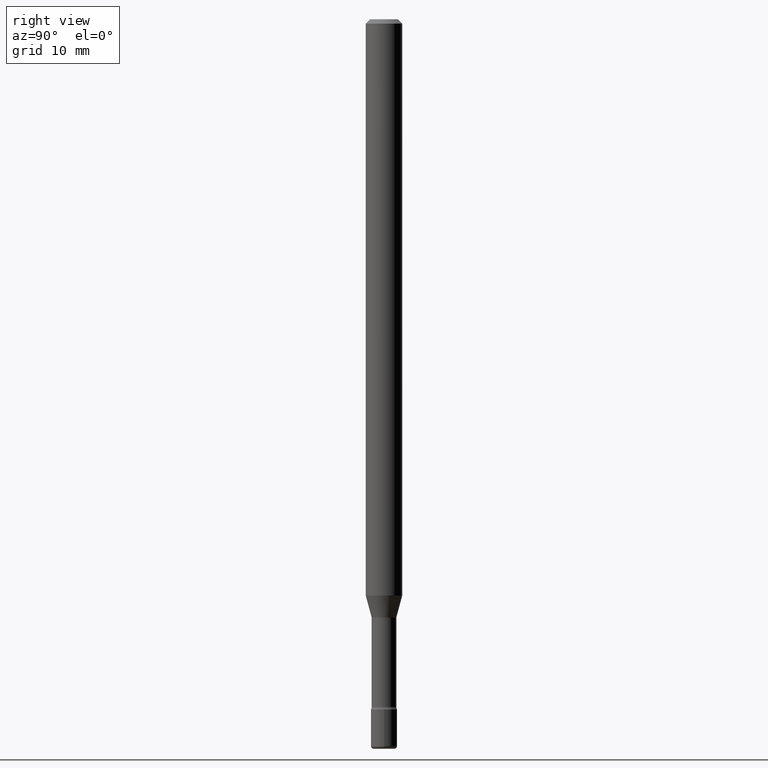
[diagram: clean part render]
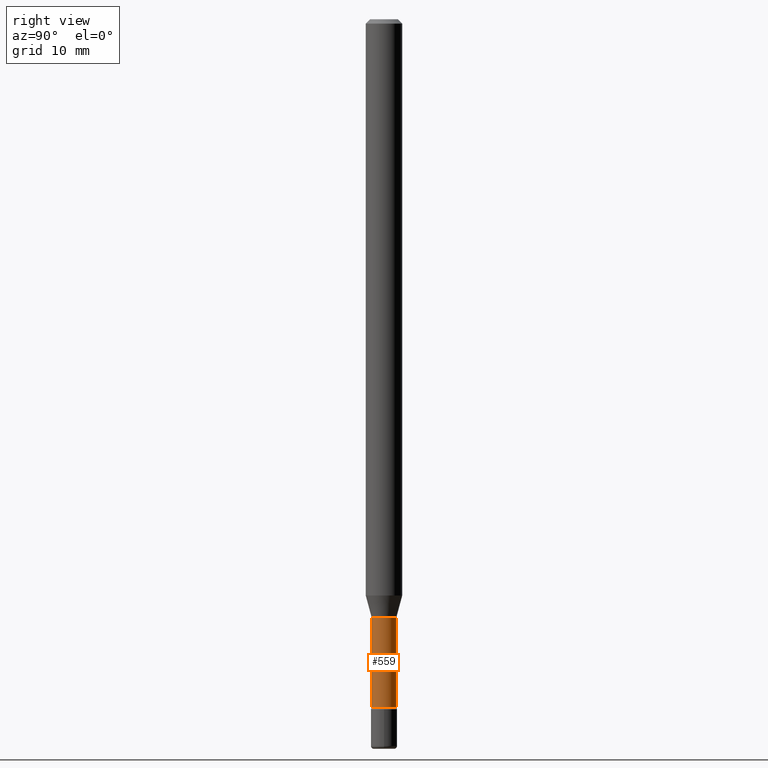
[diagram: same view with one face highlighted and labeled with its STEP entity id]
A machine part, right view. The second image highlights one B-rep face of the part: STEP entity #559.
In plain terms, the highlighted cylindrical surface (edge-blend (fillet) strip) has radius 1.0744 mm, axis along (-0, 0, 1).
Its self-contained STEP definition (entity closure, byte-faithful):
#9 = VERTEX_POINT ( 'NONE', #539 ) ;
#19 = DIRECTION ( 'NONE',  ( -6.982962677686266711E-15, -1.000000000000000000, 6.458269488567998169E-15 ) ) ;
#32 = DIRECTION ( 'NONE',  ( -2.445411864812793917E-29, 3.491562882129241838E-15, 1.000000000000000000 ) ) ;
#40 = CARTESIAN_POINT ( 'NONE',  ( -2.953793212661290535E-16, -0.04229999999999999732, 6.257665088053130012E-16 ) ) ;
#56 = EDGE_LOOP ( 'NONE', ( #516, #128, #101, #84 ) ) ;
#80 = EDGE_CURVE ( 'NONE', #119, #566, #97, .T. ) ;
#84 = ORIENTED_EDGE ( 'NONE', *, *, #440, .F. ) ;
#97 = CIRCLE ( 'NONE', #334, 0.04229999999999999732 ) ;
#101 = ORIENTED_EDGE ( 'NONE', *, *, #458, .F. ) ;
#112 = DIRECTION ( 'NONE',  ( -2.445411864812793917E-29, 3.491562882129241838E-15, 1.000000000000000000 ) ) ;
#119 = VERTEX_POINT ( 'NONE', #160 ) ;
#125 = CIRCLE ( 'NONE', #509, 0.04229999999999999732 ) ;
#128 = ORIENTED_EDGE ( 'NONE', *, *, #439, .T. ) ;
#160 = CARTESIAN_POINT ( 'NONE',  ( -2.953793212660714173E-16, -0.04230000000000822685, -2.356414547187247077 ) ) ;
#180 = CARTESIAN_POINT ( 'NONE',  ( 3.101519041593414751E-16, 0.04229999999999176780, -2.356414547187247965 ) ) ;
#213 = DIRECTION ( 'NONE',  ( -2.445411864812793917E-29, 3.491562882129241838E-15, 1.000000000000000000 ) ) ;
#248 = CARTESIAN_POINT ( 'NONE',  ( 3.005595772265223103E-16, 0.04229999999999999732, 3.303802889771791745E-16 ) ) ;
#254 = CYLINDRICAL_SURFACE ( 'NONE', #531, 0.04229999999999999732 ) ;
#334 = AXIS2_PLACEMENT_3D ( 'NONE', #376, #408, #19 ) ;
#344 = LINE ( 'NONE', #40, #471 ) ;
#346 = DIRECTION ( 'NONE',  ( -2.445411864812793917E-29, 3.491562882129241838E-15, 1.000000000000000000 ) ) ;
#376 = CARTESIAN_POINT ( 'NONE',  ( 5.762404092109162712E-29, -8.227569567868378496E-15, -2.356414547187247521 ) ) ;
#393 = CARTESIAN_POINT ( 'NONE',  ( -1.169113584055446105E-44, 1.669184350826100908E-30, 4.780733988912460139E-16 ) ) ;
#395 = VERTEX_POINT ( 'NONE', #550 ) ;
#408 = DIRECTION ( 'NONE',  ( -2.445411864812793917E-29, 3.491562882129241838E-15, 1.000000000000000000 ) ) ;
#439 = EDGE_CURVE ( 'NONE', #566, #9, #504, .T. ) ;
#440 = EDGE_CURVE ( 'NONE', #119, #395, #344, .T. ) ;
#458 = EDGE_CURVE ( 'NONE', #395, #9, #125, .T. ) ;
#463 = DIRECTION ( 'NONE',  ( -6.982962677686266711E-15, -1.000000000000000000, 6.458269488567998169E-15 ) ) ;
#471 = VECTOR ( 'NONE', #213, 39.37007874015748143 ) ;
#504 = LINE ( 'NONE', #248, #529 ) ;
#509 = AXIS2_PLACEMENT_3D ( 'NONE', #561, #112, #463 ) ;
#516 = ORIENTED_EDGE ( 'NONE', *, *, #80, .T. ) ;
#521 = FACE_OUTER_BOUND ( 'NONE', #56, .T. ) ;
#526 = DIRECTION ( 'NONE',  ( -6.982962677686266711E-15, -1.000000000000000000, 3.491562882129241049E-15 ) ) ;
#529 = VECTOR ( 'NONE', #32, 39.37007874015748143 ) ;
#531 = AXIS2_PLACEMENT_3D ( 'NONE', #393, #346, #526 ) ;
#539 = CARTESIAN_POINT ( 'NONE',  ( 3.005595772265800451E-16, 0.04229999999999283639, -2.051974787463811456 ) ) ;
#550 = CARTESIAN_POINT ( 'NONE',  ( -2.953793212660789115E-16, -0.04230000000000716520, -2.051974787463811012 ) ) ;
#559 = ADVANCED_FACE ( 'NONE', ( #521 ), #254, .T. ) ;
#561 = CARTESIAN_POINT ( 'NONE',  ( 5.017923491560715117E-29, -7.164599002973683646E-15, -2.051974787463811456 ) ) ;
#566 = VERTEX_POINT ( 'NONE', #180 ) ;